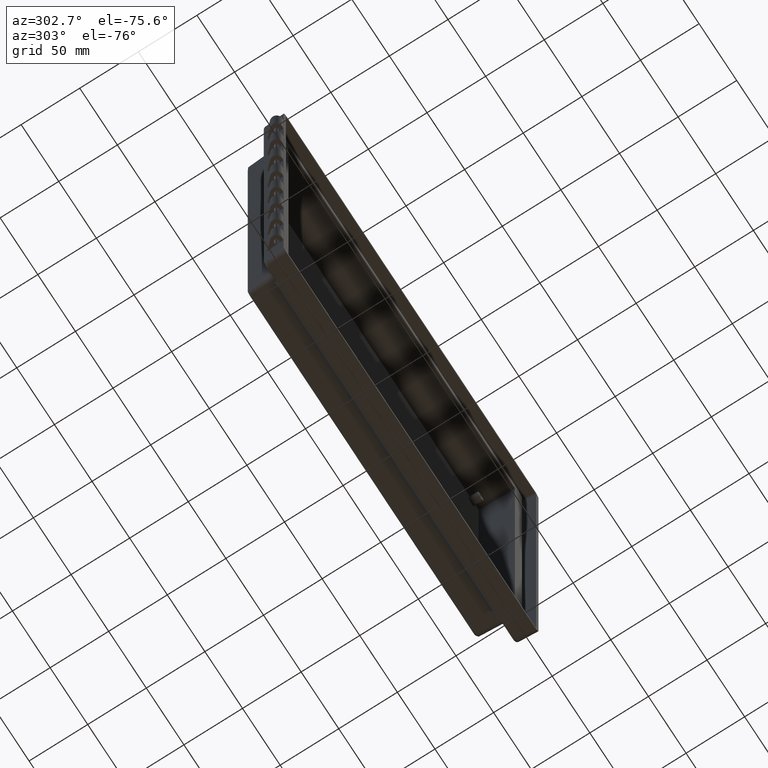
[diagram: clean part render]
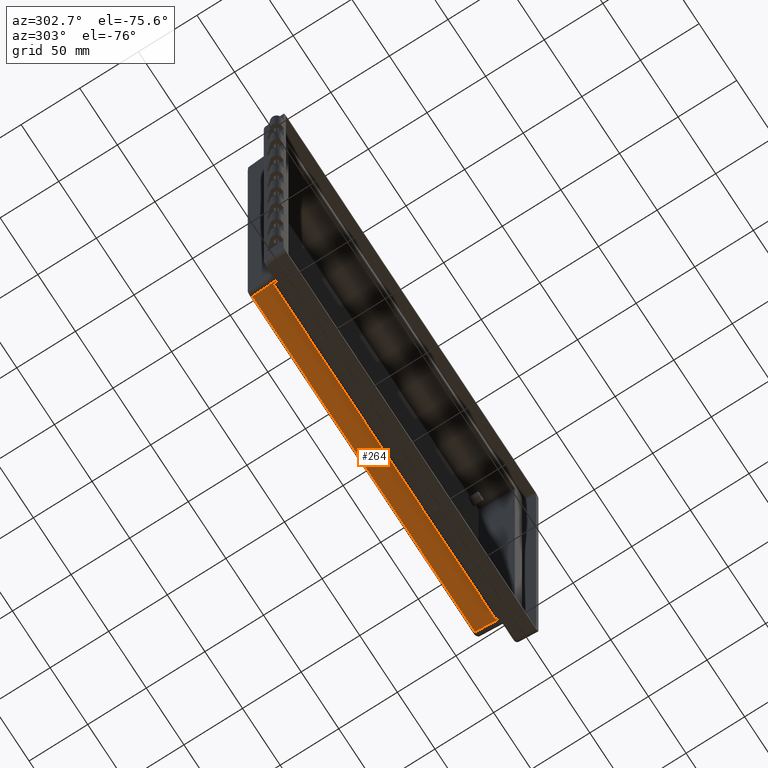
[diagram: same view with one face highlighted and labeled with its STEP entity id]
A machine part, auxiliary view. The second image highlights one B-rep face of the part: STEP entity #264.
In plain terms, the highlighted planar face has unit normal (0, 0.0523, -0.9986).
Its self-contained STEP definition (entity closure, byte-faithful):
#120 = VERTEX_POINT ( 'NONE', #2876 ) ;
#122 = EDGE_CURVE ( 'NONE', #123, #120, #2875, .T. ) ;
#123 = VERTEX_POINT ( 'NONE', #2836 ) ;
#185 = VERTEX_POINT ( 'NONE', #3177 ) ;
#188 = EDGE_CURVE ( 'NONE', #189, #185, #3261, .T. ) ;
#189 = VERTEX_POINT ( 'NONE', #3254 ) ;
#249 = ORIENTED_EDGE ( 'NONE', *, *, #250, .T. ) ;
#250 = EDGE_CURVE ( 'NONE', #335, #251, #3456, .T. ) ;
#251 = VERTEX_POINT ( 'NONE', #3541 ) ;
#252 = ORIENTED_EDGE ( 'NONE', *, *, #311, .T. ) ;
#264 = ADVANCED_FACE ( 'NONE', ( #3630 ), #3628, .T. ) ;
#265 = EDGE_LOOP ( 'NONE', ( #266, #327, #330, #332, #333, #249, #252, #312 ) ) ;
#266 = ORIENTED_EDGE ( 'NONE', *, *, #267, .T. ) ;
#267 = EDGE_CURVE ( 'NONE', #185, #268, #3623, .T. ) ;
#268 = VERTEX_POINT ( 'NONE', #3610 ) ;
#311 = EDGE_CURVE ( 'NONE', #251, #189, #3773, .T. ) ;
#312 = ORIENTED_EDGE ( 'NONE', *, *, #188, .T. ) ;
#327 = ORIENTED_EDGE ( 'NONE', *, *, #328, .T. ) ;
#328 = EDGE_CURVE ( 'NONE', #268, #329, #3831, .T. ) ;
#329 = VERTEX_POINT ( 'NONE', #3823 ) ;
#330 = ORIENTED_EDGE ( 'NONE', *, *, #331, .F. ) ;
#331 = EDGE_CURVE ( 'NONE', #123, #329, #3818, .T. ) ;
#332 = ORIENTED_EDGE ( 'NONE', *, *, #122, .T. ) ;
#333 = ORIENTED_EDGE ( 'NONE', *, *, #334, .T. ) ;
#334 = EDGE_CURVE ( 'NONE', #120, #335, #3940, .T. ) ;
#335 = VERTEX_POINT ( 'NONE', #3936 ) ;
#2836 = CARTESIAN_POINT ( 'NONE',  ( -148.1847589717226000, 10.26305314132471700, -180.9621361761993200 ) ) ;
#2860 = DIRECTION ( 'NONE',  ( -1.000000000000000000, 0.0000000000000000000, 3.536126075396313200E-014 ) ) ;
#2861 = VECTOR ( 'NONE', #2860, 1000.000000000000000 ) ;
#2863 = CARTESIAN_POINT ( 'NONE',  ( -150.6831077282361900, 10.26305314132471700, -180.9621361761992400 ) ) ;
#2875 = LINE ( 'NONE', #2863, #2861 ) ;
#2876 = CARTESIAN_POINT ( 'NONE',  ( -148.9696737350492400, 10.26305314132472400, -180.9621361761993200 ) ) ;
#3177 = CARTESIAN_POINT ( 'NONE',  ( 148.1847589717226600, 10.26305314132472000, -180.9621361761993200 ) ) ;
#3254 = CARTESIAN_POINT ( 'NONE',  ( 148.9696737350492400, 10.26305314132472000, -180.9621361761993500 ) ) ;
#3256 = DIRECTION ( 'NONE',  ( -1.000000000000000000, 0.0000000000000000000, 3.536126075396563700E-014 ) ) ;
#3258 = VECTOR ( 'NONE', #3256, 1000.000000000000000 ) ;
#3260 = CARTESIAN_POINT ( 'NONE',  ( 150.6831077282363100, 10.26305314132471700, -180.9621361761994100 ) ) ;
#3261 = LINE ( 'NONE', #3260, #3258 ) ;
#3452 = DIRECTION ( 'NONE',  ( 1.000000000000000000, -0.0000000000000000000, -0.0000000000000000000 ) ) ;
#3453 = VECTOR ( 'NONE', #3452, 1000.000000000000000 ) ;
#3455 = CARTESIAN_POINT ( 'NONE',  ( 147.7256730632263400, 32.50205569786820100, -179.7966394387409800 ) ) ;
#3456 = LINE ( 'NONE', #3455, #3453 ) ;
#3541 = CARTESIAN_POINT ( 'NONE',  ( 147.8041769975909000, 32.50205569786820800, -179.7966394387410100 ) ) ;
#3610 = CARTESIAN_POINT ( 'NONE',  ( 147.9520671007931600, 14.70307853665325300, -180.7294443052698500 ) ) ;
#3611 = DIRECTION ( 'NONE',  ( -0.05226442768871476100, 0.9972646886342373400, 0.05226442768871476100 ) ) ;
#3613 = VECTOR ( 'NONE', #3611, 999.9999999999998900 ) ;
#3615 = CARTESIAN_POINT ( 'NONE',  ( 149.8981929649096700, -22.43121508807622500, -182.6755701693863600 ) ) ;
#3618 = DIRECTION ( 'NONE',  ( 0.0000000000000000000, 0.9986295347545739400, 0.05233595624294395300 ) ) ;
#3619 = DIRECTION ( 'NONE',  ( 0.0000000000000000000, 0.05233595624294395300, -0.9986295347545739400 ) ) ;
#3621 = CARTESIAN_POINT ( 'NONE',  ( -155.0000000000000600, 0.0000000000000000000, -181.5000000000000000 ) ) ;
#3623 = LINE ( 'NONE', #3615, #3613 ) ;
#3627 = AXIS2_PLACEMENT_3D ( 'NONE', #3621, #3619, #3618 ) ;
#3628 = PLANE ( 'NONE',  #3627 ) ;
#3630 = FACE_OUTER_BOUND ( 'NONE', #265, .T. ) ;
#3768 = DIRECTION ( 'NONE',  ( 0.05226442768871403200, -0.9972646886342372300, -0.05226442768871402500 ) ) ;
#3770 = VECTOR ( 'NONE', #3768, 1000.000000000000200 ) ;
#3772 = CARTESIAN_POINT ( 'NONE',  ( 148.6757537821812600, 15.87137993724889800, -180.6682162233313700 ) ) ;
#3773 = LINE ( 'NONE', #3772, #3770 ) ;
#3818 = LINE ( 'NONE', #3946, #3945 ) ;
#3823 = CARTESIAN_POINT ( 'NONE',  ( -147.9520671007931300, 14.70307853665326500, -180.7294443052698500 ) ) ;
#3826 = DIRECTION ( 'NONE',  ( -1.000000000000000000, 0.0000000000000000000, 0.0000000000000000000 ) ) ;
#3827 = VECTOR ( 'NONE', #3826, 1000.000000000000000 ) ;
#3829 = CARTESIAN_POINT ( 'NONE',  ( -148.0323846841268400, 14.70307853665325300, -180.7294443052698500 ) ) ;
#3831 = LINE ( 'NONE', #3829, #3827 ) ;
#3936 = CARTESIAN_POINT ( 'NONE',  ( -147.8041769975909000, 32.50205569786820800, -179.7966394387409800 ) ) ;
#3937 = DIRECTION ( 'NONE',  ( 0.05226442768871404600, 0.9972646886342372300, 0.05226442768871402500 ) ) ;
#3938 = VECTOR ( 'NONE', #3937, 1000.000000000000200 ) ;
#3939 = CARTESIAN_POINT ( 'NONE',  ( -149.5225406066862200, -0.2862752064970351400, -181.5150030478363000 ) ) ;
#3940 = LINE ( 'NONE', #3939, #3938 ) ;
#3944 = DIRECTION ( 'NONE',  ( 0.05226442768871476100, 0.9972646886342373400, 0.05226442768871476100 ) ) ;
#3945 = VECTOR ( 'NONE', #3944, 999.9999999999998900 ) ;
#3946 = CARTESIAN_POINT ( 'NONE',  ( -149.8981929649096100, -22.43121508807622500, -182.6755701693863600 ) ) ;